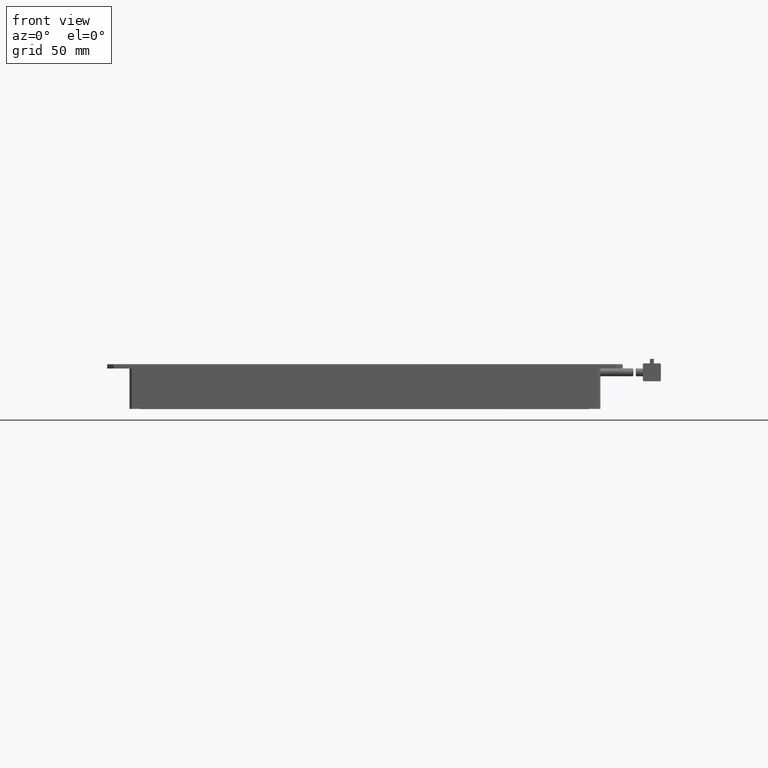
[diagram: clean part render]
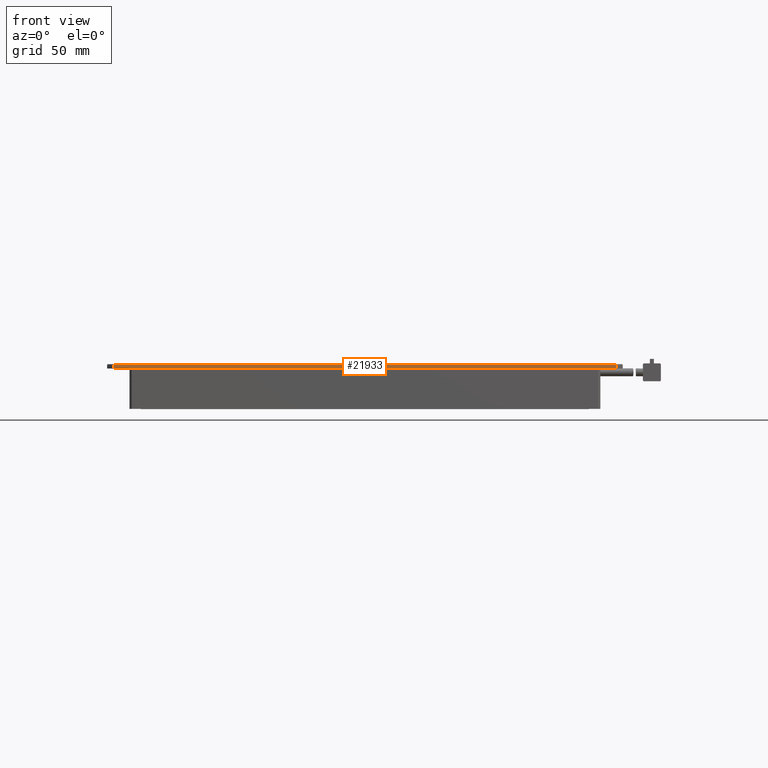
[diagram: same view with one face highlighted and labeled with its STEP entity id]
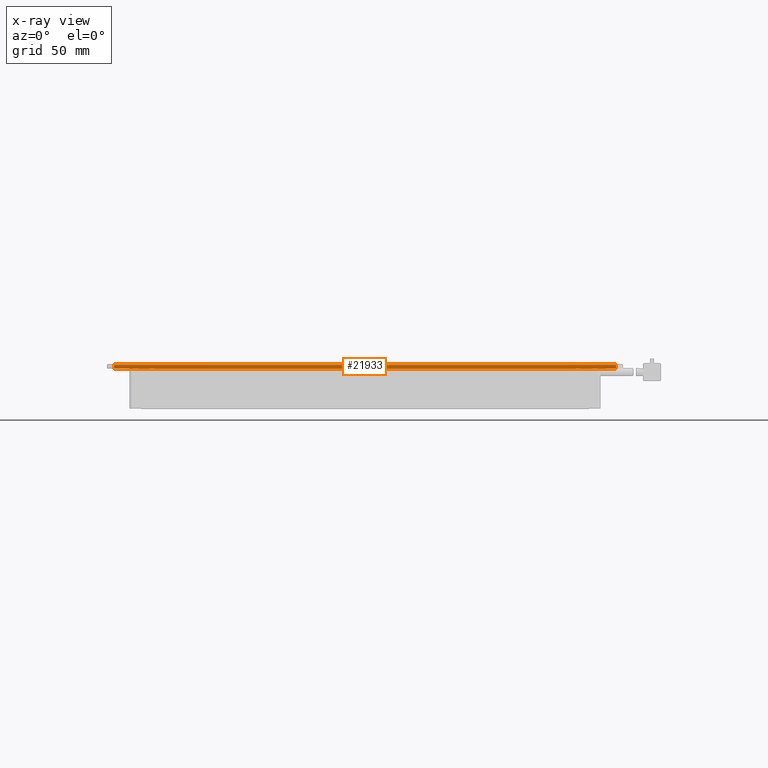
[diagram: x-ray of the same camera — body ghosted, the highlighted face saturated]
A machine part, front view. The second image highlights one B-rep face of the part: STEP entity #21933.
The next image is the same camera in x-ray: the body ghosted, the highlighted face saturated — about 0% of this face is hidden behind the body in this view.
In plain terms, the highlighted planar face has unit normal (0, 1, 0).
Its self-contained STEP definition (entity closure, byte-faithful):
#810 = VERTEX_POINT ( 'NONE', #5798 ) ;
#1840 = DIRECTION ( 'NONE',  ( 0.0000000000000000000, 0.0000000000000000000, 1.000000000000000000 ) ) ;
#1895 = VECTOR ( 'NONE', #21970, 1000.000000000000000 ) ;
#2327 = CARTESIAN_POINT ( 'NONE',  ( 133.6657505824760800, -139.3787539827808400, -2.364688306277784600E-011 ) ) ;
#3076 = FACE_OUTER_BOUND ( 'NONE', #19178, .T. ) ;
#3166 = VERTEX_POINT ( 'NONE', #7115 ) ;
#3500 = EDGE_CURVE ( 'NONE', #810, #10787, #19747, .T. ) ;
#4737 = LINE ( 'NONE', #2327, #13423 ) ;
#5798 = CARTESIAN_POINT ( 'NONE',  ( 130.6657505824761100, -139.3787539827808400, -2.364720832342959200E-011 ) ) ;
#5977 = VECTOR ( 'NONE', #1840, 1000.000000000000000 ) ;
#6511 = LINE ( 'NONE', #20301, #1895 ) ;
#7115 = CARTESIAN_POINT ( 'NONE',  ( -93.33424941752387800, -139.3787539827808400, -2.364688306277784600E-011 ) ) ;
#7600 = CARTESIAN_POINT ( 'NONE',  ( 130.6657505824761100, -139.3787539827808400, 1.999999999976353100 ) ) ;
#7970 = ORIENTED_EDGE ( 'NONE', *, *, #9634, .T. ) ;
#8014 = EDGE_CURVE ( 'NONE', #3166, #13220, #6511, .T. ) ;
#8313 = PLANE ( 'NONE',  #17190 ) ;
#9084 = ORIENTED_EDGE ( 'NONE', *, *, #3500, .T. ) ;
#9358 = ORIENTED_EDGE ( 'NONE', *, *, #21470, .F. ) ;
#9634 = EDGE_CURVE ( 'NONE', #3166, #810, #4737, .T. ) ;
#9895 = ORIENTED_EDGE ( 'NONE', *, *, #8014, .F. ) ;
#10139 = DIRECTION ( 'NONE',  ( 0.0000000000000000000, 1.000000000000000000, 0.0000000000000000000 ) ) ;
#10787 = VERTEX_POINT ( 'NONE', #20086 ) ;
#13205 = VECTOR ( 'NONE', #15542, 1000.000000000000000 ) ;
#13220 = VERTEX_POINT ( 'NONE', #21785 ) ;
#13423 = VECTOR ( 'NONE', #16203, 1000.000000000000000 ) ;
#13818 = CARTESIAN_POINT ( 'NONE',  ( -93.33424941752387800, -139.3787539827808400, 1.699999999976330700 ) ) ;
#14327 = LINE ( 'NONE', #13818, #13205 ) ;
#15542 = DIRECTION ( 'NONE',  ( 1.000000000000000000, 0.0000000000000000000, -0.0000000000000000000 ) ) ;
#16203 = DIRECTION ( 'NONE',  ( 1.000000000000000000, 0.0000000000000000000, -0.0000000000000000000 ) ) ;
#17190 = AXIS2_PLACEMENT_3D ( 'NONE', #20471, #10139, #22210 ) ;
#19178 = EDGE_LOOP ( 'NONE', ( #9358, #9895, #7970, #9084 ) ) ;
#19747 = LINE ( 'NONE', #7600, #5977 ) ;
#20086 = CARTESIAN_POINT ( 'NONE',  ( 130.6657505824760800, -139.3787539827808400, 1.699999999976331800 ) ) ;
#20301 = CARTESIAN_POINT ( 'NONE',  ( -93.33424941752387800, -139.3787539827808400, 1.999999999976353100 ) ) ;
#20471 = CARTESIAN_POINT ( 'NONE',  ( -93.33424941752387800, -139.3787539827808400, 1.999999999976353100 ) ) ;
#21470 = EDGE_CURVE ( 'NONE', #13220, #10787, #14327, .T. ) ;
#21785 = CARTESIAN_POINT ( 'NONE',  ( -93.33424941752387800, -139.3787539827808400, 1.699999999976330700 ) ) ;
#21933 = ADVANCED_FACE ( 'NONE', ( #3076 ), #8313, .F. ) ;
#21970 = DIRECTION ( 'NONE',  ( 0.0000000000000000000, -0.0000000000000000000, 1.000000000000000000 ) ) ;
#22210 = DIRECTION ( 'NONE',  ( 0.0000000000000000000, -0.0000000000000000000, 1.000000000000000000 ) ) ;